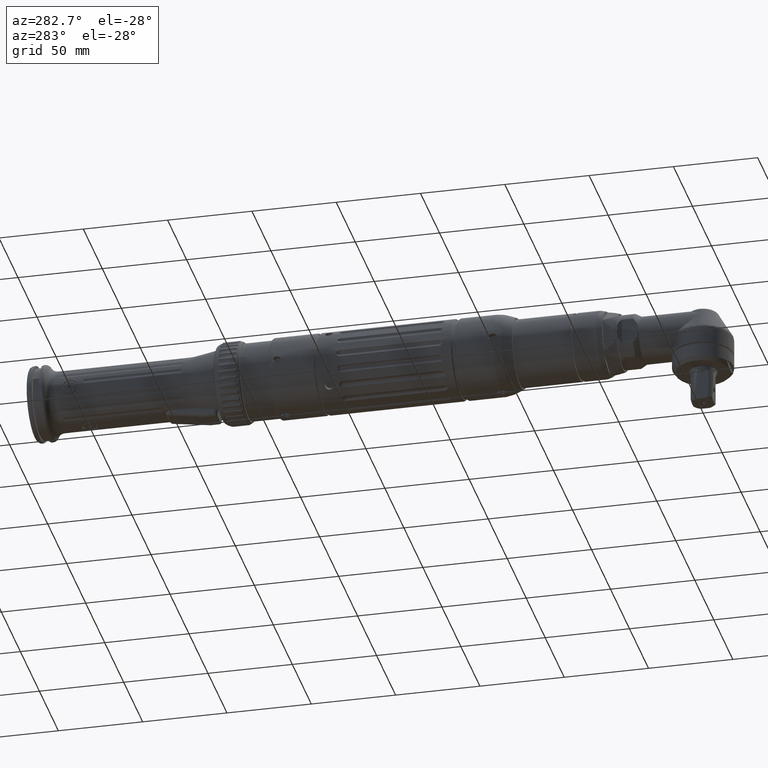
[diagram: clean part render]
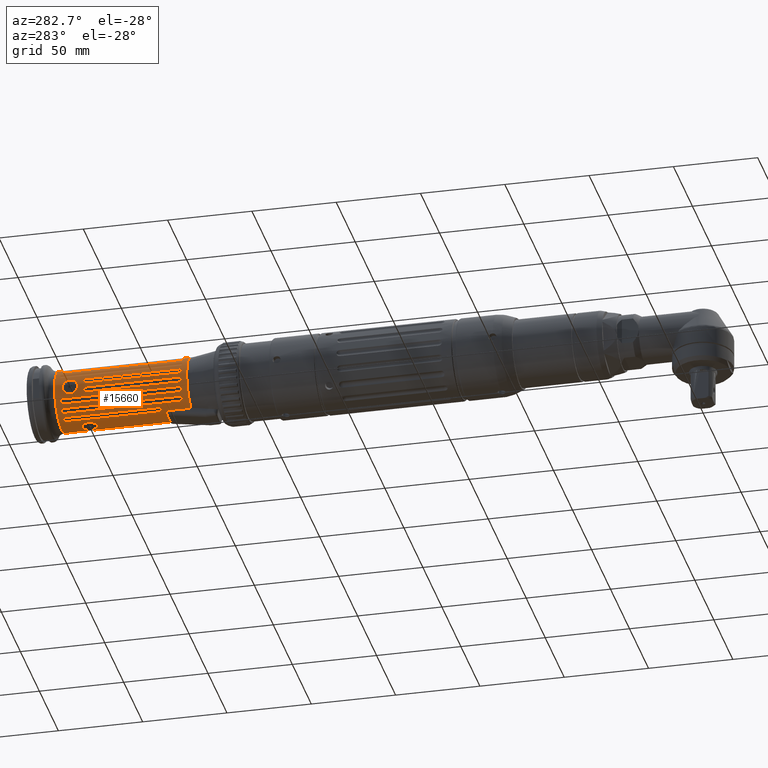
[diagram: same view with one face highlighted and labeled with its STEP entity id]
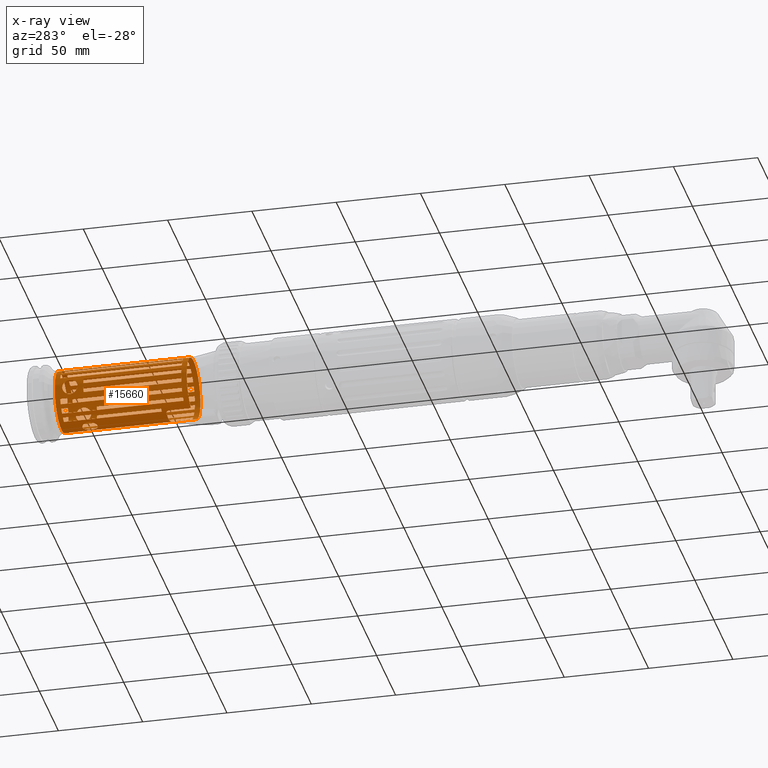
[diagram: x-ray of the same camera — body ghosted, the highlighted face saturated]
A machine part, auxiliary view. The second image highlights one B-rep face of the part: STEP entity #15660.
The next image is the same camera in x-ray: the body ghosted, the highlighted face saturated — about 0% of this face is hidden behind the body in this view.
In plain terms, the highlighted cylindrical surface (bore or boss wall) has radius 18 mm, axis along (-0, 1, -0).
Its self-contained STEP definition (entity closure, byte-faithful):
#428=B_SPLINE_CURVE_WITH_KNOTS('',3,(#26450,#26451,#26452,#26453,#26454,
#26455,#26456,#26457,#26458,#26459,#26460,#26461,#26462,#26463,#26464,#26465,
#26466,#26467),.UNSPECIFIED.,.F.,.F.,(4,2,2,2,2,2,2,2,4),(0.681159195238395,
0.851437088441764,1.02171498164513,1.19201668606096,1.36231839047679,1.53262009489262,
1.70292179930845,1.87319969251182,2.04347758571518),.UNSPECIFIED.);
#429=B_SPLINE_CURVE_WITH_KNOTS('',3,(#26468,#26469,#26470,#26471,#26472,
#26473,#26474,#26475,#26476,#26477,#26478,#26479,#26480,#26481,#26482,#26483,
#26484,#26485,#26486),.UNSPECIFIED.,.F.,.F.,(4,2,2,2,3,2,2,2,4),(2.04347758571518,
2.21375547891855,2.38403337212192,2.55433507653775,2.72463678095358,2.89493848536941,
3.06524018978524,3.23551808298861,3.40579597619198),.UNSPECIFIED.);
#430=B_SPLINE_CURVE_WITH_KNOTS('',3,(#26494,#26495,#26496,#26497,#26498,
#26499,#26500,#26501,#26502,#26503,#26504,#26505,#26506,#26507,#26508,#26509,
#26510,#26511),.UNSPECIFIED.,.F.,.F.,(4,2,2,2,2,2,2,2,4),(0.681159195238395,
0.851437088441765,1.02171498164513,1.19201668606096,1.36231839047679,1.53262009489262,
1.70292179930844,1.87319969251181,2.04347758571518),.UNSPECIFIED.);
#431=B_SPLINE_CURVE_WITH_KNOTS('',3,(#26512,#26513,#26514,#26515,#26516,
#26517,#26518,#26519,#26520,#26521,#26522,#26523,#26524,#26525,#26526,#26527,
#26528,#26529,#26530),.UNSPECIFIED.,.F.,.F.,(4,2,2,2,3,2,2,2,4),(2.04347758571518,
2.21375547891855,2.38403337212192,2.55433507653775,2.72463678095358,2.89493848536941,
3.06524018978523,3.2355180829886,3.40579597619197),.UNSPECIFIED.);
#432=B_SPLINE_CURVE_WITH_KNOTS('',3,(#26538,#26539,#26540,#26541,#26542,
#26543,#26544,#26545,#26546,#26547,#26548,#26549,#26550,#26551,#26552,#26553,
#26554,#26555),.UNSPECIFIED.,.F.,.F.,(4,2,2,2,2,2,2,2,4),(0.681159195238395,
0.851437088441764,1.02171498164513,1.19201668606096,1.36231839047679,1.53262009489262,
1.70292179930844,1.87319969251181,2.04347758571518),.UNSPECIFIED.);
#433=B_SPLINE_CURVE_WITH_KNOTS('',3,(#26556,#26557,#26558,#26559,#26560,
#26561,#26562,#26563,#26564,#26565,#26566,#26567,#26568,#26569,#26570,#26571,
#26572,#26573,#26574),.UNSPECIFIED.,.F.,.F.,(4,2,2,2,3,2,2,2,4),(2.04347758571518,
2.21375547891855,2.38403337212192,2.55433507653775,2.72463678095358,2.89493848536941,
3.06524018978523,3.2355180829886,3.40579597619197),.UNSPECIFIED.);
#434=B_SPLINE_CURVE_WITH_KNOTS('',3,(#26954,#26955,#26956,#26957,#26958,
#26959,#26960,#26961,#26962,#26963),.UNSPECIFIED.,.F.,.F.,(4,2,2,2,4),(0.615891232885407,
0.691283300350833,0.766675367816259,0.846407723507124,0.926140079197989),
 .UNSPECIFIED.);
#435=B_SPLINE_CURVE_WITH_KNOTS('',3,(#26970,#26971,#26972,#26973,#26974,
#26975,#26976,#26977,#26978,#26979),.UNSPECIFIED.,.F.,.F.,(4,2,2,2,4),(0.305642386572825,
0.385374742263691,0.465107097954556,0.540499165419982,0.615891232885407),
 .UNSPECIFIED.);
#1173=FACE_BOUND('',#4673,.T.);
#1174=FACE_BOUND('',#4674,.T.);
#1175=FACE_BOUND('',#4675,.T.);
#1176=FACE_BOUND('',#4676,.T.);
#1177=FACE_BOUND('',#4677,.T.);
#1178=FACE_BOUND('',#4678,.T.);
#1179=FACE_BOUND('',#4679,.T.);
#1180=FACE_BOUND('',#4680,.T.);
#1181=FACE_BOUND('',#4681,.T.);
#1182=FACE_BOUND('',#4682,.T.);
#1183=FACE_BOUND('',#4683,.T.);
#1184=FACE_BOUND('',#4684,.T.);
#1185=FACE_BOUND('',#4685,.T.);
#1186=FACE_BOUND('',#4686,.T.);
#1187=FACE_BOUND('',#4687,.T.);
#1188=FACE_BOUND('',#4688,.T.);
#1189=FACE_BOUND('',#4689,.T.);
#1190=FACE_BOUND('',#4690,.T.);
#1191=FACE_BOUND('',#4691,.T.);
#1192=FACE_BOUND('',#4692,.T.);
#1193=FACE_BOUND('',#4693,.T.);
#1194=FACE_BOUND('',#4694,.T.);
#1602=LINE('',#25584,#2469);
#1608=LINE('',#25615,#2475);
#1647=LINE('',#26159,#2514);
#1653=LINE('',#26174,#2520);
#1717=LINE('',#26618,#2584);
#1719=LINE('',#26623,#2586);
#1722=LINE('',#26634,#2589);
#1727=LINE('',#26643,#2594);
#1731=LINE('',#26656,#2598);
#1733=LINE('',#26661,#2600);
#1738=LINE('',#26675,#2605);
#1740=LINE('',#26680,#2607);
#1745=LINE('',#26694,#2612);
#1747=LINE('',#26699,#2614);
#1752=LINE('',#26713,#2619);
#1754=LINE('',#26718,#2621);
#1759=LINE('',#26732,#2626);
#1761=LINE('',#26737,#2628);
#1766=LINE('',#26751,#2633);
#1768=LINE('',#26756,#2635);
#1773=LINE('',#26770,#2640);
#1775=LINE('',#26775,#2642);
#1780=LINE('',#26789,#2647);
#1782=LINE('',#26794,#2649);
#1787=LINE('',#26808,#2654);
#1789=LINE('',#26813,#2656);
#1794=LINE('',#26827,#2661);
#1796=LINE('',#26832,#2663);
#1801=LINE('',#26846,#2668);
#1803=LINE('',#26851,#2670);
#1808=LINE('',#26865,#2675);
#1810=LINE('',#26870,#2677);
#1815=LINE('',#26884,#2682);
#1817=LINE('',#26889,#2684);
#1822=LINE('',#26903,#2689);
#1824=LINE('',#26908,#2691);
#1829=LINE('',#26922,#2696);
#1831=LINE('',#26927,#2698);
#1836=LINE('',#26941,#2703);
#1838=LINE('',#26946,#2705);
#2469=VECTOR('',#19917,10.);
#2475=VECTOR('',#19933,10.);
#2514=VECTOR('',#20150,10.);
#2520=VECTOR('',#20162,10.);
#2584=VECTOR('',#20370,10.);
#2586=VECTOR('',#20374,10.);
#2589=VECTOR('',#20387,10.);
#2594=VECTOR('',#20394,10.);
#2598=VECTOR('',#20408,10.);
#2600=VECTOR('',#20412,10.);
#2605=VECTOR('',#20427,10.);
#2607=VECTOR('',#20431,10.);
#2612=VECTOR('',#20446,10.);
#2614=VECTOR('',#20450,10.);
#2619=VECTOR('',#20465,10.);
#2621=VECTOR('',#20469,10.);
#2626=VECTOR('',#20484,10.);
#2628=VECTOR('',#20488,10.);
#2633=VECTOR('',#20503,10.);
#2635=VECTOR('',#20507,10.);
#2640=VECTOR('',#20522,10.);
#2642=VECTOR('',#20526,10.);
#2647=VECTOR('',#20541,10.);
#2649=VECTOR('',#20545,10.);
#2654=VECTOR('',#20560,10.);
#2656=VECTOR('',#20564,10.);
#2661=VECTOR('',#20579,10.);
#2663=VECTOR('',#20583,10.);
#2668=VECTOR('',#20598,10.);
#2670=VECTOR('',#20602,10.);
#2675=VECTOR('',#20617,10.);
#2677=VECTOR('',#20621,10.);
#2682=VECTOR('',#20636,10.);
#2684=VECTOR('',#20640,10.);
#2689=VECTOR('',#20655,10.);
#2691=VECTOR('',#20659,10.);
#2696=VECTOR('',#20674,10.);
#2698=VECTOR('',#20678,10.);
#2703=VECTOR('',#20693,10.);
#2705=VECTOR('',#20697,10.);
#3563=FACE_OUTER_BOUND('',#4672,.T.);
#4672=EDGE_LOOP('',(#11965,#11966,#11967,#11968,#11969,#11970,#11971,#11972));
#4673=EDGE_LOOP('',(#11973,#11974));
#4674=EDGE_LOOP('',(#11975,#11976));
#4675=EDGE_LOOP('',(#11977,#11978));
#4676=EDGE_LOOP('',(#11979,#11980,#11981,#11982));
#4677=EDGE_LOOP('',(#11983,#11984,#11985,#11986));
#4678=EDGE_LOOP('',(#11987,#11988,#11989,#11990));
#4679=EDGE_LOOP('',(#11991,#11992,#11993,#11994));
#4680=EDGE_LOOP('',(#11995,#11996,#11997,#11998));
#4681=EDGE_LOOP('',(#11999,#12000,#12001,#12002));
#4682=EDGE_LOOP('',(#12003,#12004,#12005,#12006));
#4683=EDGE_LOOP('',(#12007,#12008,#12009,#12010));
#4684=EDGE_LOOP('',(#12011,#12012,#12013,#12014));
#4685=EDGE_LOOP('',(#12015,#12016,#12017,#12018));
#4686=EDGE_LOOP('',(#12019,#12020,#12021,#12022));
#4687=EDGE_LOOP('',(#12023,#12024,#12025,#12026));
#4688=EDGE_LOOP('',(#12027,#12028,#12029,#12030));
#4689=EDGE_LOOP('',(#12031,#12032,#12033,#12034));
#4690=EDGE_LOOP('',(#12035,#12036,#12037,#12038));
#4691=EDGE_LOOP('',(#12039,#12040,#12041,#12042));
#4692=EDGE_LOOP('',(#12043,#12044,#12045,#12046));
#4693=EDGE_LOOP('',(#12047,#12048,#12049,#12050));
#4694=EDGE_LOOP('',(#12051));
#5671=CIRCLE('',#16992,18.);
#5685=CIRCLE('',#17038,18.);
#5686=CIRCLE('',#17040,18.);
#5687=CIRCLE('',#17044,18.);
#5688=CIRCLE('',#17046,18.);
#5689=CIRCLE('',#17050,18.);
#5690=CIRCLE('',#17052,18.);
#5691=CIRCLE('',#17056,18.);
#5692=CIRCLE('',#17058,18.);
#5693=CIRCLE('',#17062,18.);
#5694=CIRCLE('',#17064,18.);
#5695=CIRCLE('',#17068,18.);
#5696=CIRCLE('',#17070,18.);
#5697=CIRCLE('',#17074,18.);
#5698=CIRCLE('',#17076,18.);
#5699=CIRCLE('',#17080,18.);
#5700=CIRCLE('',#17082,18.);
#5701=CIRCLE('',#17086,18.);
#5702=CIRCLE('',#17088,18.);
#5703=CIRCLE('',#17092,18.);
#5704=CIRCLE('',#17094,18.);
#5705=CIRCLE('',#17098,18.);
#5706=CIRCLE('',#17100,18.);
#5707=CIRCLE('',#17104,18.);
#5708=CIRCLE('',#17106,18.);
#5709=CIRCLE('',#17110,18.);
#5710=CIRCLE('',#17112,18.);
#5711=CIRCLE('',#17116,18.);
#5712=CIRCLE('',#17118,18.);
#5713=CIRCLE('',#17122,18.);
#5714=CIRCLE('',#17124,18.);
#5715=CIRCLE('',#17128,18.);
#5716=CIRCLE('',#17130,18.);
#5717=CIRCLE('',#17134,18.);
#5718=CIRCLE('',#17136,18.);
#5719=CIRCLE('',#17140,18.);
#5720=CIRCLE('',#17142,18.);
#5721=CIRCLE('',#17145,18.);
#5722=CIRCLE('',#17149,18.);
#6740=VERTEX_POINT('',#25582);
#6741=VERTEX_POINT('',#25583);
#6751=VERTEX_POINT('',#25612);
#6752=VERTEX_POINT('',#25614);
#6814=VERTEX_POINT('',#26157);
#6820=VERTEX_POINT('',#26173);
#6870=VERTEX_POINT('',#26448);
#6871=VERTEX_POINT('',#26449);
#6873=VERTEX_POINT('',#26492);
#6874=VERTEX_POINT('',#26493);
#6876=VERTEX_POINT('',#26536);
#6877=VERTEX_POINT('',#26537);
#6883=VERTEX_POINT('',#26612);
#6885=VERTEX_POINT('',#26616);
#6886=VERTEX_POINT('',#26620);
#6887=VERTEX_POINT('',#26622);
#6889=VERTEX_POINT('',#26631);
#6890=VERTEX_POINT('',#26633);
#6892=VERTEX_POINT('',#26639);
#6893=VERTEX_POINT('',#26641);
#6895=VERTEX_POINT('',#26650);
#6897=VERTEX_POINT('',#26654);
#6898=VERTEX_POINT('',#26658);
#6899=VERTEX_POINT('',#26660);
#6901=VERTEX_POINT('',#26669);
#6903=VERTEX_POINT('',#26673);
#6904=VERTEX_POINT('',#26677);
#6905=VERTEX_POINT('',#26679);
#6907=VERTEX_POINT('',#26688);
#6909=VERTEX_POINT('',#26692);
#6910=VERTEX_POINT('',#26696);
#6911=VERTEX_POINT('',#26698);
#6913=VERTEX_POINT('',#26707);
#6915=VERTEX_POINT('',#26711);
#6916=VERTEX_POINT('',#26715);
#6917=VERTEX_POINT('',#26717);
#6919=VERTEX_POINT('',#26726);
#6921=VERTEX_POINT('',#26730);
#6922=VERTEX_POINT('',#26734);
#6923=VERTEX_POINT('',#26736);
#6925=VERTEX_POINT('',#26745);
#6927=VERTEX_POINT('',#26749);
#6928=VERTEX_POINT('',#26753);
#6929=VERTEX_POINT('',#26755);
#6931=VERTEX_POINT('',#26764);
#6933=VERTEX_POINT('',#26768);
#6934=VERTEX_POINT('',#26772);
#6935=VERTEX_POINT('',#26774);
#6937=VERTEX_POINT('',#26783);
#6939=VERTEX_POINT('',#26787);
#6940=VERTEX_POINT('',#26791);
#6941=VERTEX_POINT('',#26793);
#6943=VERTEX_POINT('',#26802);
#6945=VERTEX_POINT('',#26806);
#6946=VERTEX_POINT('',#26810);
#6947=VERTEX_POINT('',#26812);
#6949=VERTEX_POINT('',#26821);
#6951=VERTEX_POINT('',#26825);
#6952=VERTEX_POINT('',#26829);
#6953=VERTEX_POINT('',#26831);
#6955=VERTEX_POINT('',#26840);
#6957=VERTEX_POINT('',#26844);
#6958=VERTEX_POINT('',#26848);
#6959=VERTEX_POINT('',#26850);
#6961=VERTEX_POINT('',#26859);
#6963=VERTEX_POINT('',#26863);
#6964=VERTEX_POINT('',#26867);
#6965=VERTEX_POINT('',#26869);
#6967=VERTEX_POINT('',#26878);
#6969=VERTEX_POINT('',#26882);
#6970=VERTEX_POINT('',#26886);
#6971=VERTEX_POINT('',#26888);
#6973=VERTEX_POINT('',#26897);
#6975=VERTEX_POINT('',#26901);
#6976=VERTEX_POINT('',#26905);
#6977=VERTEX_POINT('',#26907);
#6979=VERTEX_POINT('',#26916);
#6981=VERTEX_POINT('',#26920);
#6982=VERTEX_POINT('',#26924);
#6983=VERTEX_POINT('',#26926);
#6985=VERTEX_POINT('',#26935);
#6987=VERTEX_POINT('',#26939);
#6988=VERTEX_POINT('',#26943);
#6989=VERTEX_POINT('',#26945);
#6990=VERTEX_POINT('',#26953);
#6991=VERTEX_POINT('',#26966);
#6994=VERTEX_POINT('',#26987);
#8395=EDGE_CURVE('',#6740,#6741,#1602,.T.);
#8407=EDGE_CURVE('',#6752,#6751,#1608,.T.);
#8515=EDGE_CURVE('',#6741,#6814,#1647,.T.);
#8522=EDGE_CURVE('',#6820,#6752,#1653,.T.);
#8579=EDGE_CURVE('',#6740,#6751,#5671,.T.);
#8599=EDGE_CURVE('',#6870,#6871,#428,.T.);
#8600=EDGE_CURVE('',#6871,#6870,#429,.T.);
#8602=EDGE_CURVE('',#6873,#6874,#430,.T.);
#8603=EDGE_CURVE('',#6874,#6873,#431,.T.);
#8605=EDGE_CURVE('',#6876,#6877,#432,.T.);
#8606=EDGE_CURVE('',#6877,#6876,#433,.T.);
#8628=EDGE_CURVE('',#6883,#6885,#1717,.T.);
#8630=EDGE_CURVE('',#6887,#6886,#1719,.T.);
#8632=EDGE_CURVE('',#6885,#6887,#5685,.T.);
#8633=EDGE_CURVE('',#6886,#6883,#5686,.T.);
#8635=EDGE_CURVE('',#6890,#6889,#1722,.T.);
#8640=EDGE_CURVE('',#6892,#6893,#1727,.T.);
#8641=EDGE_CURVE('',#6889,#6892,#5687,.T.);
#8642=EDGE_CURVE('',#6893,#6890,#5688,.T.);
#8646=EDGE_CURVE('',#6895,#6897,#1731,.T.);
#8648=EDGE_CURVE('',#6899,#6898,#1733,.T.);
#8650=EDGE_CURVE('',#6897,#6899,#5689,.T.);
#8651=EDGE_CURVE('',#6898,#6895,#5690,.T.);
#8655=EDGE_CURVE('',#6901,#6903,#1738,.T.);
#8657=EDGE_CURVE('',#6905,#6904,#1740,.T.);
#8659=EDGE_CURVE('',#6903,#6905,#5691,.T.);
#8660=EDGE_CURVE('',#6904,#6901,#5692,.T.);
#8664=EDGE_CURVE('',#6907,#6909,#1745,.T.);
#8666=EDGE_CURVE('',#6911,#6910,#1747,.T.);
#8668=EDGE_CURVE('',#6909,#6911,#5693,.T.);
#8669=EDGE_CURVE('',#6910,#6907,#5694,.T.);
#8673=EDGE_CURVE('',#6913,#6915,#1752,.T.);
#8675=EDGE_CURVE('',#6917,#6916,#1754,.T.);
#8677=EDGE_CURVE('',#6915,#6917,#5695,.T.);
#8678=EDGE_CURVE('',#6916,#6913,#5696,.T.);
#8682=EDGE_CURVE('',#6919,#6921,#1759,.T.);
#8684=EDGE_CURVE('',#6923,#6922,#1761,.T.);
#8686=EDGE_CURVE('',#6921,#6923,#5697,.T.);
#8687=EDGE_CURVE('',#6922,#6919,#5698,.T.);
#8691=EDGE_CURVE('',#6925,#6927,#1766,.T.);
#8693=EDGE_CURVE('',#6929,#6928,#1768,.T.);
#8695=EDGE_CURVE('',#6927,#6929,#5699,.T.);
#8696=EDGE_CURVE('',#6928,#6925,#5700,.T.);
#8700=EDGE_CURVE('',#6931,#6933,#1773,.T.);
#8702=EDGE_CURVE('',#6935,#6934,#1775,.T.);
#8704=EDGE_CURVE('',#6933,#6935,#5701,.T.);
#8705=EDGE_CURVE('',#6934,#6931,#5702,.T.);
#8709=EDGE_CURVE('',#6937,#6939,#1780,.T.);
#8711=EDGE_CURVE('',#6941,#6940,#1782,.T.);
#8713=EDGE_CURVE('',#6939,#6941,#5703,.T.);
#8714=EDGE_CURVE('',#6940,#6937,#5704,.T.);
#8718=EDGE_CURVE('',#6943,#6945,#1787,.T.);
#8720=EDGE_CURVE('',#6947,#6946,#1789,.T.);
#8722=EDGE_CURVE('',#6945,#6947,#5705,.T.);
#8723=EDGE_CURVE('',#6946,#6943,#5706,.T.);
#8727=EDGE_CURVE('',#6949,#6951,#1794,.T.);
#8729=EDGE_CURVE('',#6953,#6952,#1796,.T.);
#8731=EDGE_CURVE('',#6951,#6953,#5707,.T.);
#8732=EDGE_CURVE('',#6952,#6949,#5708,.T.);
#8736=EDGE_CURVE('',#6955,#6957,#1801,.T.);
#8738=EDGE_CURVE('',#6959,#6958,#1803,.T.);
#8740=EDGE_CURVE('',#6957,#6959,#5709,.T.);
#8741=EDGE_CURVE('',#6958,#6955,#5710,.T.);
#8745=EDGE_CURVE('',#6961,#6963,#1808,.T.);
#8747=EDGE_CURVE('',#6965,#6964,#1810,.T.);
#8749=EDGE_CURVE('',#6963,#6965,#5711,.T.);
#8750=EDGE_CURVE('',#6964,#6961,#5712,.T.);
#8754=EDGE_CURVE('',#6967,#6969,#1815,.T.);
#8756=EDGE_CURVE('',#6971,#6970,#1817,.T.);
#8758=EDGE_CURVE('',#6969,#6971,#5713,.T.);
#8759=EDGE_CURVE('',#6970,#6967,#5714,.T.);
#8763=EDGE_CURVE('',#6973,#6975,#1822,.T.);
#8765=EDGE_CURVE('',#6977,#6976,#1824,.T.);
#8767=EDGE_CURVE('',#6975,#6977,#5715,.T.);
#8768=EDGE_CURVE('',#6976,#6973,#5716,.T.);
#8772=EDGE_CURVE('',#6979,#6981,#1829,.T.);
#8774=EDGE_CURVE('',#6983,#6982,#1831,.T.);
#8776=EDGE_CURVE('',#6981,#6983,#5717,.T.);
#8777=EDGE_CURVE('',#6982,#6979,#5718,.T.);
#8781=EDGE_CURVE('',#6985,#6987,#1836,.T.);
#8783=EDGE_CURVE('',#6989,#6988,#1838,.T.);
#8785=EDGE_CURVE('',#6987,#6989,#5719,.T.);
#8786=EDGE_CURVE('',#6988,#6985,#5720,.T.);
#8787=EDGE_CURVE('',#6820,#6990,#434,.T.);
#8789=EDGE_CURVE('',#6991,#6990,#5721,.T.);
#8791=EDGE_CURVE('',#6991,#6814,#435,.T.);
#8795=EDGE_CURVE('',#6994,#6994,#5722,.T.);
#11965=ORIENTED_EDGE('',*,*,#8579,.F.);
#11966=ORIENTED_EDGE('',*,*,#8395,.T.);
#11967=ORIENTED_EDGE('',*,*,#8515,.T.);
#11968=ORIENTED_EDGE('',*,*,#8791,.F.);
#11969=ORIENTED_EDGE('',*,*,#8789,.T.);
#11970=ORIENTED_EDGE('',*,*,#8787,.F.);
#11971=ORIENTED_EDGE('',*,*,#8522,.T.);
#11972=ORIENTED_EDGE('',*,*,#8407,.T.);
#11973=ORIENTED_EDGE('',*,*,#8599,.T.);
#11974=ORIENTED_EDGE('',*,*,#8600,.T.);
#11975=ORIENTED_EDGE('',*,*,#8602,.T.);
#11976=ORIENTED_EDGE('',*,*,#8603,.T.);
#11977=ORIENTED_EDGE('',*,*,#8605,.T.);
#11978=ORIENTED_EDGE('',*,*,#8606,.T.);
#11979=ORIENTED_EDGE('',*,*,#8630,.T.);
#11980=ORIENTED_EDGE('',*,*,#8633,.T.);
#11981=ORIENTED_EDGE('',*,*,#8628,.T.);
#11982=ORIENTED_EDGE('',*,*,#8632,.T.);
#11983=ORIENTED_EDGE('',*,*,#8640,.T.);
#11984=ORIENTED_EDGE('',*,*,#8642,.T.);
#11985=ORIENTED_EDGE('',*,*,#8635,.T.);
#11986=ORIENTED_EDGE('',*,*,#8641,.T.);
#11987=ORIENTED_EDGE('',*,*,#8648,.T.);
#11988=ORIENTED_EDGE('',*,*,#8651,.T.);
#11989=ORIENTED_EDGE('',*,*,#8646,.T.);
#11990=ORIENTED_EDGE('',*,*,#8650,.T.);
#11991=ORIENTED_EDGE('',*,*,#8657,.T.);
#11992=ORIENTED_EDGE('',*,*,#8660,.T.);
#11993=ORIENTED_EDGE('',*,*,#8655,.T.);
#11994=ORIENTED_EDGE('',*,*,#8659,.T.);
#11995=ORIENTED_EDGE('',*,*,#8666,.T.);
#11996=ORIENTED_EDGE('',*,*,#8669,.T.);
#11997=ORIENTED_EDGE('',*,*,#8664,.T.);
#11998=ORIENTED_EDGE('',*,*,#8668,.T.);
#11999=ORIENTED_EDGE('',*,*,#8675,.T.);
#12000=ORIENTED_EDGE('',*,*,#8678,.T.);
#12001=ORIENTED_EDGE('',*,*,#8673,.T.);
#12002=ORIENTED_EDGE('',*,*,#8677,.T.);
#12003=ORIENTED_EDGE('',*,*,#8684,.T.);
#12004=ORIENTED_EDGE('',*,*,#8687,.T.);
#12005=ORIENTED_EDGE('',*,*,#8682,.T.);
#12006=ORIENTED_EDGE('',*,*,#8686,.T.);
#12007=ORIENTED_EDGE('',*,*,#8693,.T.);
#12008=ORIENTED_EDGE('',*,*,#8696,.T.);
#12009=ORIENTED_EDGE('',*,*,#8691,.T.);
#12010=ORIENTED_EDGE('',*,*,#8695,.T.);
#12011=ORIENTED_EDGE('',*,*,#8702,.T.);
#12012=ORIENTED_EDGE('',*,*,#8705,.T.);
#12013=ORIENTED_EDGE('',*,*,#8700,.T.);
#12014=ORIENTED_EDGE('',*,*,#8704,.T.);
#12015=ORIENTED_EDGE('',*,*,#8711,.T.);
#12016=ORIENTED_EDGE('',*,*,#8714,.T.);
#12017=ORIENTED_EDGE('',*,*,#8709,.T.);
#12018=ORIENTED_EDGE('',*,*,#8713,.T.);
#12019=ORIENTED_EDGE('',*,*,#8720,.T.);
#12020=ORIENTED_EDGE('',*,*,#8723,.T.);
#12021=ORIENTED_EDGE('',*,*,#8718,.T.);
#12022=ORIENTED_EDGE('',*,*,#8722,.T.);
#12023=ORIENTED_EDGE('',*,*,#8729,.T.);
#12024=ORIENTED_EDGE('',*,*,#8732,.T.);
#12025=ORIENTED_EDGE('',*,*,#8727,.T.);
#12026=ORIENTED_EDGE('',*,*,#8731,.T.);
#12027=ORIENTED_EDGE('',*,*,#8738,.T.);
#12028=ORIENTED_EDGE('',*,*,#8741,.T.);
#12029=ORIENTED_EDGE('',*,*,#8736,.T.);
#12030=ORIENTED_EDGE('',*,*,#8740,.T.);
#12031=ORIENTED_EDGE('',*,*,#8747,.T.);
#12032=ORIENTED_EDGE('',*,*,#8750,.T.);
#12033=ORIENTED_EDGE('',*,*,#8745,.T.);
#12034=ORIENTED_EDGE('',*,*,#8749,.T.);
#12035=ORIENTED_EDGE('',*,*,#8756,.T.);
#12036=ORIENTED_EDGE('',*,*,#8759,.T.);
#12037=ORIENTED_EDGE('',*,*,#8754,.T.);
#12038=ORIENTED_EDGE('',*,*,#8758,.T.);
#12039=ORIENTED_EDGE('',*,*,#8765,.T.);
#12040=ORIENTED_EDGE('',*,*,#8768,.T.);
#12041=ORIENTED_EDGE('',*,*,#8763,.T.);
#12042=ORIENTED_EDGE('',*,*,#8767,.T.);
#12043=ORIENTED_EDGE('',*,*,#8774,.T.);
#12044=ORIENTED_EDGE('',*,*,#8777,.T.);
#12045=ORIENTED_EDGE('',*,*,#8772,.T.);
#12046=ORIENTED_EDGE('',*,*,#8776,.T.);
#12047=ORIENTED_EDGE('',*,*,#8783,.T.);
#12048=ORIENTED_EDGE('',*,*,#8786,.T.);
#12049=ORIENTED_EDGE('',*,*,#8781,.T.);
#12050=ORIENTED_EDGE('',*,*,#8785,.T.);
#12051=ORIENTED_EDGE('',*,*,#8795,.F.);
#14087=CYLINDRICAL_SURFACE('',#17148,18.);
#15660=ADVANCED_FACE('',(#3563,#1173,#1174,#1175,#1176,#1177,#1178,#1179,
#1180,#1181,#1182,#1183,#1184,#1185,#1186,#1187,#1188,#1189,#1190,#1191,
#1192,#1193,#1194),#14087,.T.);
#16992=AXIS2_PLACEMENT_3D('',#26404,#20253,#20254);
#17038=AXIS2_PLACEMENT_3D('',#26626,#20378,#20379);
#17040=AXIS2_PLACEMENT_3D('',#26628,#20382,#20383);
#17044=AXIS2_PLACEMENT_3D('',#26645,#20397,#20398);
#17046=AXIS2_PLACEMENT_3D('',#26647,#20401,#20402);
#17050=AXIS2_PLACEMENT_3D('',#26664,#20416,#20417);
#17052=AXIS2_PLACEMENT_3D('',#26666,#20420,#20421);
#17056=AXIS2_PLACEMENT_3D('',#26683,#20435,#20436);
#17058=AXIS2_PLACEMENT_3D('',#26685,#20439,#20440);
#17062=AXIS2_PLACEMENT_3D('',#26702,#20454,#20455);
#17064=AXIS2_PLACEMENT_3D('',#26704,#20458,#20459);
#17068=AXIS2_PLACEMENT_3D('',#26721,#20473,#20474);
#17070=AXIS2_PLACEMENT_3D('',#26723,#20477,#20478);
#17074=AXIS2_PLACEMENT_3D('',#26740,#20492,#20493);
#17076=AXIS2_PLACEMENT_3D('',#26742,#20496,#20497);
#17080=AXIS2_PLACEMENT_3D('',#26759,#20511,#20512);
#17082=AXIS2_PLACEMENT_3D('',#26761,#20515,#20516);
#17086=AXIS2_PLACEMENT_3D('',#26778,#20530,#20531);
#17088=AXIS2_PLACEMENT_3D('',#26780,#20534,#20535);
#17092=AXIS2_PLACEMENT_3D('',#26797,#20549,#20550);
#17094=AXIS2_PLACEMENT_3D('',#26799,#20553,#20554);
#17098=AXIS2_PLACEMENT_3D('',#26816,#20568,#20569);
#17100=AXIS2_PLACEMENT_3D('',#26818,#20572,#20573);
#17104=AXIS2_PLACEMENT_3D('',#26835,#20587,#20588);
#17106=AXIS2_PLACEMENT_3D('',#26837,#20591,#20592);
#17110=AXIS2_PLACEMENT_3D('',#26854,#20606,#20607);
#17112=AXIS2_PLACEMENT_3D('',#26856,#20610,#20611);
#17116=AXIS2_PLACEMENT_3D('',#26873,#20625,#20626);
#17118=AXIS2_PLACEMENT_3D('',#26875,#20629,#20630);
#17122=AXIS2_PLACEMENT_3D('',#26892,#20644,#20645);
#17124=AXIS2_PLACEMENT_3D('',#26894,#20648,#20649);
#17128=AXIS2_PLACEMENT_3D('',#26911,#20663,#20664);
#17130=AXIS2_PLACEMENT_3D('',#26913,#20667,#20668);
#17134=AXIS2_PLACEMENT_3D('',#26930,#20682,#20683);
#17136=AXIS2_PLACEMENT_3D('',#26932,#20686,#20687);
#17140=AXIS2_PLACEMENT_3D('',#26949,#20701,#20702);
#17142=AXIS2_PLACEMENT_3D('',#26951,#20705,#20706);
#17145=AXIS2_PLACEMENT_3D('',#26967,#20712,#20713);
#17148=AXIS2_PLACEMENT_3D('',#26986,#20722,#20723);
#17149=AXIS2_PLACEMENT_3D('',#26988,#20724,#20725);
#19917=DIRECTION('',(-3.57077291260411E-15,1.,-1.39896932915523E-15));
#19933=DIRECTION('',(3.57077291260411E-15,-1.,1.39896932915523E-15));
#20150=DIRECTION('',(-3.57077291260411E-15,1.,-1.39896932915523E-15));
#20162=DIRECTION('',(3.57077291260411E-15,-1.,1.39896932915523E-15));
#20253=DIRECTION('center_axis',(3.57077291260411E-15,-1.,1.39896932915523E-15));
#20254=DIRECTION('ref_axis',(4.59536232514686E-17,1.39896932915523E-15,
1.));
#20370=DIRECTION('',(-3.57077291260411E-15,1.,-1.39896932915523E-15));
#20374=DIRECTION('',(3.57077291260411E-15,-1.,1.39896932915523E-15));
#20378=DIRECTION('center_axis',(-3.57077291260411E-15,1.,-1.39896932915523E-15));
#20379=DIRECTION('ref_axis',(3.52115323038307E-16,1.39896932915523E-15,
1.));
#20382=DIRECTION('center_axis',(3.57077291260411E-15,-1.,1.39896932915523E-15));
#20383=DIRECTION('ref_axis',(3.52115323038307E-16,1.39896932915523E-15,
1.));
#20387=DIRECTION('',(3.57077291260411E-15,-1.,1.39896932915523E-15));
#20394=DIRECTION('',(-3.57077291260411E-15,1.,-1.39896932915523E-15));
#20397=DIRECTION('center_axis',(3.57077291260411E-15,-1.,1.39896932915523E-15));
#20398=DIRECTION('ref_axis',(3.52115323038307E-16,1.39896932915523E-15,
1.));
#20401=DIRECTION('center_axis',(-3.57077291260411E-15,1.,-1.39896932915523E-15));
#20402=DIRECTION('ref_axis',(3.52115323038307E-16,1.39896932915523E-15,
1.));
#20408=DIRECTION('',(-3.57077291260411E-15,1.,-1.39896932915523E-15));
#20412=DIRECTION('',(3.57077291260411E-15,-1.,1.39896932915523E-15));
#20416=DIRECTION('center_axis',(-3.57077291260411E-15,1.,-1.39896932915523E-15));
#20417=DIRECTION('ref_axis',(3.52115323038307E-16,1.39896932915523E-15,
1.));
#20420=DIRECTION('center_axis',(3.57077291260411E-15,-1.,1.39896932915523E-15));
#20421=DIRECTION('ref_axis',(3.52115323038307E-16,1.39896932915523E-15,
1.));
#20427=DIRECTION('',(-3.57077291260411E-15,1.,-1.39896932915523E-15));
#20431=DIRECTION('',(3.57077291260411E-15,-1.,1.39896932915523E-15));
#20435=DIRECTION('center_axis',(-3.57077291260411E-15,1.,-1.39896932915523E-15));
#20436=DIRECTION('ref_axis',(3.52115323038307E-16,1.39896932915523E-15,
1.));
#20439=DIRECTION('center_axis',(3.57077291260411E-15,-1.,1.39896932915523E-15));
#20440=DIRECTION('ref_axis',(3.52115323038307E-16,1.39896932915523E-15,
1.));
#20446=DIRECTION('',(-3.57077291260411E-15,1.,-1.39896932915523E-15));
#20450=DIRECTION('',(3.57077291260411E-15,-1.,1.39896932915523E-15));
#20454=DIRECTION('center_axis',(-3.57077291260411E-15,1.,-1.39896932915523E-15));
#20455=DIRECTION('ref_axis',(3.52115323038307E-16,1.39896932915523E-15,
1.));
#20458=DIRECTION('center_axis',(3.57077291260411E-15,-1.,1.39896932915523E-15));
#20459=DIRECTION('ref_axis',(3.52115323038307E-16,1.39896932915523E-15,
1.));
#20465=DIRECTION('',(-3.57077291260411E-15,1.,-1.39896932915523E-15));
#20469=DIRECTION('',(3.57077291260411E-15,-1.,1.39896932915523E-15));
#20473=DIRECTION('center_axis',(-3.57077291260411E-15,1.,-1.39896932915523E-15));
#20474=DIRECTION('ref_axis',(3.52115323038307E-16,1.39896932915523E-15,
1.));
#20477=DIRECTION('center_axis',(3.57077291260411E-15,-1.,1.39896932915523E-15));
#20478=DIRECTION('ref_axis',(3.52115323038307E-16,1.39896932915523E-15,
1.));
#20484=DIRECTION('',(-3.57077291260411E-15,1.,-1.39896932915523E-15));
#20488=DIRECTION('',(3.57077291260411E-15,-1.,1.39896932915523E-15));
#20492=DIRECTION('center_axis',(-3.57077291260411E-15,1.,-1.39896932915523E-15));
#20493=DIRECTION('ref_axis',(3.52115323038307E-16,1.39896932915523E-15,
1.));
#20496=DIRECTION('center_axis',(3.57077291260411E-15,-1.,1.39896932915523E-15));
#20497=DIRECTION('ref_axis',(3.52115323038307E-16,1.39896932915523E-15,
1.));
#20503=DIRECTION('',(-3.57077291260411E-15,1.,-1.39896932915523E-15));
#20507=DIRECTION('',(3.57077291260411E-15,-1.,1.39896932915523E-15));
#20511=DIRECTION('center_axis',(-3.57077291260411E-15,1.,-1.39896932915523E-15));
#20512=DIRECTION('ref_axis',(3.52115323038307E-16,1.39896932915523E-15,
1.));
#20515=DIRECTION('center_axis',(3.57077291260411E-15,-1.,1.39896932915523E-15));
#20516=DIRECTION('ref_axis',(3.52115323038307E-16,1.39896932915523E-15,
1.));
#20522=DIRECTION('',(-3.57077291260411E-15,1.,-1.39896932915523E-15));
#20526=DIRECTION('',(3.57077291260411E-15,-1.,1.39896932915523E-15));
#20530=DIRECTION('center_axis',(-3.57077291260411E-15,1.,-1.39896932915523E-15));
#20531=DIRECTION('ref_axis',(3.52115323038307E-16,1.39896932915523E-15,
1.));
#20534=DIRECTION('center_axis',(3.57077291260411E-15,-1.,1.39896932915523E-15));
#20535=DIRECTION('ref_axis',(3.52115323038307E-16,1.39896932915523E-15,
1.));
#20541=DIRECTION('',(-3.57077291260411E-15,1.,-1.39896932915523E-15));
#20545=DIRECTION('',(3.57077291260411E-15,-1.,1.39896932915523E-15));
#20549=DIRECTION('center_axis',(-3.57077291260411E-15,1.,-1.39896932915523E-15));
#20550=DIRECTION('ref_axis',(3.52115323038307E-16,1.39896932915523E-15,
1.));
#20553=DIRECTION('center_axis',(3.57077291260411E-15,-1.,1.39896932915523E-15));
#20554=DIRECTION('ref_axis',(3.52115323038307E-16,1.39896932915523E-15,
1.));
#20560=DIRECTION('',(-3.57077291260411E-15,1.,-1.39896932915523E-15));
#20564=DIRECTION('',(3.57077291260411E-15,-1.,1.39896932915523E-15));
#20568=DIRECTION('center_axis',(-3.57077291260411E-15,1.,-1.39896932915523E-15));
#20569=DIRECTION('ref_axis',(3.52115323038307E-16,1.39896932915523E-15,
1.));
#20572=DIRECTION('center_axis',(3.57077291260411E-15,-1.,1.39896932915523E-15));
#20573=DIRECTION('ref_axis',(3.52115323038307E-16,1.39896932915523E-15,
1.));
#20579=DIRECTION('',(-3.57077291260411E-15,1.,-1.39896932915523E-15));
#20583=DIRECTION('',(3.57077291260411E-15,-1.,1.39896932915523E-15));
#20587=DIRECTION('center_axis',(-3.57077291260411E-15,1.,-1.39896932915523E-15));
#20588=DIRECTION('ref_axis',(3.52115323038307E-16,1.39896932915523E-15,
1.));
#20591=DIRECTION('center_axis',(3.57077291260411E-15,-1.,1.39896932915523E-15));
#20592=DIRECTION('ref_axis',(3.52115323038307E-16,1.39896932915523E-15,
1.));
#20598=DIRECTION('',(-3.57077291260411E-15,1.,-1.39896932915523E-15));
#20602=DIRECTION('',(3.57077291260411E-15,-1.,1.39896932915523E-15));
#20606=DIRECTION('center_axis',(-3.57077291260411E-15,1.,-1.39896932915523E-15));
#20607=DIRECTION('ref_axis',(3.52115323038307E-16,1.39896932915523E-15,
1.));
#20610=DIRECTION('center_axis',(3.57077291260411E-15,-1.,1.39896932915523E-15));
#20611=DIRECTION('ref_axis',(3.52115323038307E-16,1.39896932915523E-15,
1.));
#20617=DIRECTION('',(-3.57077291260411E-15,1.,-1.39896932915523E-15));
#20621=DIRECTION('',(3.57077291260411E-15,-1.,1.39896932915523E-15));
#20625=DIRECTION('center_axis',(-3.57077291260411E-15,1.,-1.39896932915523E-15));
#20626=DIRECTION('ref_axis',(3.52115323038307E-16,1.39896932915523E-15,
1.));
#20629=DIRECTION('center_axis',(3.57077291260411E-15,-1.,1.39896932915523E-15));
#20630=DIRECTION('ref_axis',(3.52115323038307E-16,1.39896932915523E-15,
1.));
#20636=DIRECTION('',(-3.57077291260411E-15,1.,-1.39896932915523E-15));
#20640=DIRECTION('',(3.57077291260411E-15,-1.,1.39896932915523E-15));
#20644=DIRECTION('center_axis',(-3.57077291260411E-15,1.,-1.39896932915523E-15));
#20645=DIRECTION('ref_axis',(3.52115323038307E-16,1.39896932915523E-15,
1.));
#20648=DIRECTION('center_axis',(3.57077291260411E-15,-1.,1.39896932915523E-15));
#20649=DIRECTION('ref_axis',(3.52115323038307E-16,1.39896932915523E-15,
1.));
#20655=DIRECTION('',(-3.57077291260411E-15,1.,-1.39896932915523E-15));
#20659=DIRECTION('',(3.57077291260411E-15,-1.,1.39896932915523E-15));
#20663=DIRECTION('center_axis',(-3.57077291260411E-15,1.,-1.39896932915523E-15));
#20664=DIRECTION('ref_axis',(3.52115323038307E-16,1.39896932915523E-15,
1.));
#20667=DIRECTION('center_axis',(3.57077291260411E-15,-1.,1.39896932915523E-15));
#20668=DIRECTION('ref_axis',(3.52115323038307E-16,1.39896932915523E-15,
1.));
#20674=DIRECTION('',(-3.57077291260411E-15,1.,-1.39896932915523E-15));
#20678=DIRECTION('',(3.57077291260411E-15,-1.,1.39896932915523E-15));
#20682=DIRECTION('center_axis',(-3.57077291260411E-15,1.,-1.39896932915523E-15));
#20683=DIRECTION('ref_axis',(3.52115323038307E-16,1.39896932915523E-15,
1.));
#20686=DIRECTION('center_axis',(3.57077291260411E-15,-1.,1.39896932915523E-15));
#20687=DIRECTION('ref_axis',(3.52115323038307E-16,1.39896932915523E-15,
1.));
#20693=DIRECTION('',(-3.57077291260411E-15,1.,-1.39896932915523E-15));
#20697=DIRECTION('',(3.57077291260411E-15,-1.,1.39896932915523E-15));
#20701=DIRECTION('center_axis',(-3.57077291260411E-15,1.,-1.39896932915523E-15));
#20702=DIRECTION('ref_axis',(3.52115323038307E-16,1.39896932915523E-15,
1.));
#20705=DIRECTION('center_axis',(3.57077291260411E-15,-1.,1.39896932915523E-15));
#20706=DIRECTION('ref_axis',(3.52115323038307E-16,1.39896932915523E-15,
1.));
#20712=DIRECTION('center_axis',(-3.57077291260411E-15,1.,-1.39896932915523E-15));
#20713=DIRECTION('ref_axis',(3.52115323038307E-16,1.39896932915523E-15,
1.));
#20722=DIRECTION('center_axis',(-3.57077291260411E-15,1.,-1.39896932915523E-15));
#20723=DIRECTION('ref_axis',(3.52115323038307E-16,1.39896932915523E-15,
1.));
#20724=DIRECTION('center_axis',(-3.57077291260411E-15,1.,-1.39896932915523E-15));
#20725=DIRECTION('ref_axis',(-1.,-3.57077291260411E-15,3.52115323038312E-16));
#25582=CARTESIAN_POINT('',(6.99999999999937,302.204250605964,-16.5831239517767));
#25583=CARTESIAN_POINT('',(6.99999999999932,314.349,-16.5831239517767));
#25584=CARTESIAN_POINT('',(6.99999999999923,340.549,-16.5831239517768));
#25612=CARTESIAN_POINT('',(-7.00000000000064,302.204250605964,-16.5831239517767));
#25614=CARTESIAN_POINT('',(-7.00000000000068,314.349,-16.5831239517767));
#25615=CARTESIAN_POINT('',(-7.00000000000078,340.549,-16.5831239517768));
#26157=CARTESIAN_POINT('',(6.99999999999932,315.149,-16.5831239517767));
#26159=CARTESIAN_POINT('',(6.99999999999923,340.549,-16.5831239517768));
#26173=CARTESIAN_POINT('',(-7.00000000000068,315.149,-16.5831239517767));
#26174=CARTESIAN_POINT('',(-7.00000000000078,340.549,-16.5831239517768));
#26404=CARTESIAN_POINT('Origin',(-6.29575280341882E-13,302.204250605964,
2.9033190663653E-13));
#26448=CARTESIAN_POINT('',(-8.7103000373E-13,368.049,-17.9999999999998));
#26449=CARTESIAN_POINT('',(-8.38893047516563E-13,359.049,-17.9999999999998));
#26450=CARTESIAN_POINT('Ctrl Pts',(-8.64447402548763E-13,368.049,-17.9999999999998));
#26451=CARTESIAN_POINT('Ctrl Pts',(-0.56759297734543,368.049,-17.9999999999998));
#26452=CARTESIAN_POINT('Ctrl Pts',(-1.1713979511751,367.935075169635,-17.9704647044078));
#26453=CARTESIAN_POINT('Ctrl Pts',(-2.27942057071007,367.475075666882,-17.863762670115));
#26454=CARTESIAN_POINT('Ctrl Pts',(-2.78382972182275,367.129131308857,-17.7880277100483));
#26455=CARTESIAN_POINT('Ctrl Pts',(-3.58018698521705,366.332774045462,-17.6449977232352));
#26456=CARTESIAN_POINT('Ctrl Pts',(-3.92608793302347,365.828388082637,-17.5682015000517));
#26457=CARTESIAN_POINT('Ctrl Pts',(-4.38605574340565,364.720447686047,-17.4590488559556));
#26458=CARTESIAN_POINT('Ctrl Pts',(-4.50000000000086,364.116672348052,-17.4284250579332));
#26459=CARTESIAN_POINT('Ctrl Pts',(-4.50000000000085,362.981327651947,-17.4284250579332));
#26460=CARTESIAN_POINT('Ctrl Pts',(-4.38605574340564,362.377552313952,-17.4590488559556));
#26461=CARTESIAN_POINT('Ctrl Pts',(-3.92608793302345,361.269611917363,-17.5682015000517));
#26462=CARTESIAN_POINT('Ctrl Pts',(-3.58018698521703,360.765225954537,-17.6449977232351));
#26463=CARTESIAN_POINT('Ctrl Pts',(-2.78382972182272,359.968868691143,-17.7880277100483));
#26464=CARTESIAN_POINT('Ctrl Pts',(-2.27942057071004,359.622924333117,-17.863762670115));
#26465=CARTESIAN_POINT('Ctrl Pts',(-1.17139795117507,359.162924830364,-17.9704647044078));
#26466=CARTESIAN_POINT('Ctrl Pts',(-0.567592977345408,359.049,-17.9999999999998));
#26467=CARTESIAN_POINT('Ctrl Pts',(-8.42659275690494E-13,359.049,-17.9999999999998));
#26468=CARTESIAN_POINT('Ctrl Pts',(-8.35304048152352E-13,359.049,-17.9999999999998));
#26469=CARTESIAN_POINT('Ctrl Pts',(0.567592977343731,359.049,-17.9999999999998));
#26470=CARTESIAN_POINT('Ctrl Pts',(1.17139795117339,359.162924830364,-17.9704647044078));
#26471=CARTESIAN_POINT('Ctrl Pts',(2.27942057070836,359.622924333117,-17.8637626701149));
#26472=CARTESIAN_POINT('Ctrl Pts',(2.78382972182104,359.968868691143,-17.7880277100483));
#26473=CARTESIAN_POINT('Ctrl Pts',(3.58018698521534,360.765225954537,-17.6449977232352));
#26474=CARTESIAN_POINT('Ctrl Pts',(3.92608793302177,361.269611917363,-17.5682015000517));
#26475=CARTESIAN_POINT('Ctrl Pts',(4.38605574340395,362.377552313953,-17.4590488559556));
#26476=CARTESIAN_POINT('Ctrl Pts',(4.49999999999915,362.981327651947,-17.4284250579332));
#26477=CARTESIAN_POINT('Ctrl Pts',(4.49999999999915,363.549,-17.4284250579332));
#26478=CARTESIAN_POINT('Ctrl Pts',(4.49999999999914,364.116672348052,-17.4284250579332));
#26479=CARTESIAN_POINT('Ctrl Pts',(4.38605574340393,364.720447686047,-17.4590488559556));
#26480=CARTESIAN_POINT('Ctrl Pts',(3.92608793302175,365.828388082637,-17.5682015000517));
#26481=CARTESIAN_POINT('Ctrl Pts',(3.58018698521532,366.332774045462,-17.6449977232352));
#26482=CARTESIAN_POINT('Ctrl Pts',(2.78382972182101,367.129131308857,-17.7880277100483));
#26483=CARTESIAN_POINT('Ctrl Pts',(2.27942057070833,367.475075666882,-17.863762670115));
#26484=CARTESIAN_POINT('Ctrl Pts',(1.17139795117336,367.935075169635,-17.9704647044078));
#26485=CARTESIAN_POINT('Ctrl Pts',(0.567592977343693,368.049,-17.9999999999998));
#26486=CARTESIAN_POINT('Ctrl Pts',(-8.72357741599217E-13,368.049,-17.9999999999998));
#26492=CARTESIAN_POINT('',(-18.0000000000009,376.049,1.93363442929809E-13));
#26493=CARTESIAN_POINT('',(-18.0000000000009,367.049,2.05954166892206E-13));
#26494=CARTESIAN_POINT('Ctrl Pts',(-18.0000000000009,376.049,1.94219640370363E-13));
#26495=CARTESIAN_POINT('Ctrl Pts',(-18.0000000000009,376.049,0.56759297734476));
#26496=CARTESIAN_POINT('Ctrl Pts',(-17.9704647044089,375.935075169635,1.17139795117443));
#26497=CARTESIAN_POINT('Ctrl Pts',(-17.8637626701161,375.475075666882,2.2794205707094));
#26498=CARTESIAN_POINT('Ctrl Pts',(-17.7880277100494,375.129131308857,2.78382972182208));
#26499=CARTESIAN_POINT('Ctrl Pts',(-17.6449977232362,374.332774045462,3.58018698521638));
#26500=CARTESIAN_POINT('Ctrl Pts',(-17.5682015000527,373.828388082637,3.92608793302281));
#26501=CARTESIAN_POINT('Ctrl Pts',(-17.4590488559567,372.720447686047,4.38605574340499));
#26502=CARTESIAN_POINT('Ctrl Pts',(-17.4284250579343,372.116672348052,4.5000000000002));
#26503=CARTESIAN_POINT('Ctrl Pts',(-17.4284250579343,370.981327651947,4.5000000000002));
#26504=CARTESIAN_POINT('Ctrl Pts',(-17.4590488559567,370.377552313952,4.386055743405));
#26505=CARTESIAN_POINT('Ctrl Pts',(-17.5682015000527,369.269611917363,3.92608793302281));
#26506=CARTESIAN_POINT('Ctrl Pts',(-17.6449977232362,368.765225954537,3.58018698521639));
#26507=CARTESIAN_POINT('Ctrl Pts',(-17.7880277100494,367.968868691143,2.78382972182209));
#26508=CARTESIAN_POINT('Ctrl Pts',(-17.863762670116,367.622924333117,2.27942057070941));
#26509=CARTESIAN_POINT('Ctrl Pts',(-17.9704647044089,367.162924830364,1.17139795117444));
#26510=CARTESIAN_POINT('Ctrl Pts',(-18.0000000000009,367.049,0.567592977344773));
#26511=CARTESIAN_POINT('Ctrl Pts',(-18.0000000000009,367.049,2.06917816214514E-13));
#26512=CARTESIAN_POINT('Ctrl Pts',(-18.0000000000009,367.049,2.12330153459561E-13));
#26513=CARTESIAN_POINT('Ctrl Pts',(-18.0000000000009,367.049,-0.567592977344353));
#26514=CARTESIAN_POINT('Ctrl Pts',(-17.9704647044089,367.162924830364,-1.17139795117403));
#26515=CARTESIAN_POINT('Ctrl Pts',(-17.863762670116,367.622924333117,-2.279420570709));
#26516=CARTESIAN_POINT('Ctrl Pts',(-17.7880277100494,367.968868691143,-2.78382972182168));
#26517=CARTESIAN_POINT('Ctrl Pts',(-17.6449977232362,368.765225954537,-3.58018698521598));
#26518=CARTESIAN_POINT('Ctrl Pts',(-17.5682015000527,369.269611917363,-3.9260879330224));
#26519=CARTESIAN_POINT('Ctrl Pts',(-17.4590488559567,370.377552313952,-4.38605574340459));
#26520=CARTESIAN_POINT('Ctrl Pts',(-17.4284250579343,370.981327651947,-4.4999999999998));
#26521=CARTESIAN_POINT('Ctrl Pts',(-17.4284250579343,371.549,-4.4999999999998));
#26522=CARTESIAN_POINT('Ctrl Pts',(-17.4284250579343,372.116672348052,-4.4999999999998));
#26523=CARTESIAN_POINT('Ctrl Pts',(-17.4590488559567,372.720447686047,-4.38605574340459));
#26524=CARTESIAN_POINT('Ctrl Pts',(-17.5682015000527,373.828388082637,-3.92608793302241));
#26525=CARTESIAN_POINT('Ctrl Pts',(-17.6449977232362,374.332774045462,-3.58018698521599));
#26526=CARTESIAN_POINT('Ctrl Pts',(-17.7880277100494,375.129131308857,-2.78382972182169));
#26527=CARTESIAN_POINT('Ctrl Pts',(-17.8637626701161,375.475075666882,-2.27942057070901));
#26528=CARTESIAN_POINT('Ctrl Pts',(-17.9704647044089,375.935075169635,-1.17139795117404));
#26529=CARTESIAN_POINT('Ctrl Pts',(-18.0000000000009,376.049,-0.567592977344373));
#26530=CARTESIAN_POINT('Ctrl Pts',(-18.0000000000009,376.049,1.93317584162855E-13));
#26536=CARTESIAN_POINT('',(17.9999999999991,367.049,1.93278015262827E-13));
#26537=CARTESIAN_POINT('',(17.9999999999991,376.049,1.8068729130043E-13));
#26538=CARTESIAN_POINT('Ctrl Pts',(17.9999999999991,367.049,1.91929805382074E-13));
#26539=CARTESIAN_POINT('Ctrl Pts',(17.9999999999991,367.049,0.567592977344757));
#26540=CARTESIAN_POINT('Ctrl Pts',(17.9704647044072,367.162924830365,1.17139795117443));
#26541=CARTESIAN_POINT('Ctrl Pts',(17.8637626701143,367.622924333117,2.2794205707094));
#26542=CARTESIAN_POINT('Ctrl Pts',(17.7880277100476,367.968868691143,2.78382972182207));
#26543=CARTESIAN_POINT('Ctrl Pts',(17.6449977232345,368.765225954537,3.58018698521637));
#26544=CARTESIAN_POINT('Ctrl Pts',(17.568201500051,369.269611917363,3.9260879330228));
#26545=CARTESIAN_POINT('Ctrl Pts',(17.4590488559549,370.377552313952,4.38605574340498));
#26546=CARTESIAN_POINT('Ctrl Pts',(17.4284250579325,370.981327651947,4.50000000000019));
#26547=CARTESIAN_POINT('Ctrl Pts',(17.4284250579325,372.116672348053,4.50000000000019));
#26548=CARTESIAN_POINT('Ctrl Pts',(17.4590488559549,372.720447686047,4.38605574340498));
#26549=CARTESIAN_POINT('Ctrl Pts',(17.568201500051,373.828388082637,3.92608793302279));
#26550=CARTESIAN_POINT('Ctrl Pts',(17.6449977232345,374.332774045463,3.58018698521637));
#26551=CARTESIAN_POINT('Ctrl Pts',(17.7880277100476,375.129131308857,2.78382972182206));
#26552=CARTESIAN_POINT('Ctrl Pts',(17.8637626701143,375.475075666883,2.27942057070939));
#26553=CARTESIAN_POINT('Ctrl Pts',(17.9704647044071,375.935075169635,1.17139795117442));
#26554=CARTESIAN_POINT('Ctrl Pts',(17.9999999999991,376.049,0.567592977344751));
#26555=CARTESIAN_POINT('Ctrl Pts',(17.9999999999991,376.049,1.84643966782971E-13));
#26556=CARTESIAN_POINT('Ctrl Pts',(17.9999999999991,376.049,1.81937798160448E-13));
#26557=CARTESIAN_POINT('Ctrl Pts',(17.9999999999991,376.049,-0.567592977344384));
#26558=CARTESIAN_POINT('Ctrl Pts',(17.9704647044071,375.935075169635,-1.17139795117405));
#26559=CARTESIAN_POINT('Ctrl Pts',(17.8637626701143,375.475075666883,-2.27942057070902));
#26560=CARTESIAN_POINT('Ctrl Pts',(17.7880277100476,375.129131308857,-2.7838297218217));
#26561=CARTESIAN_POINT('Ctrl Pts',(17.6449977232345,374.332774045463,-3.580186985216));
#26562=CARTESIAN_POINT('Ctrl Pts',(17.568201500051,373.828388082637,-3.92608793302242));
#26563=CARTESIAN_POINT('Ctrl Pts',(17.4590488559549,372.720447686047,-4.38605574340461));
#26564=CARTESIAN_POINT('Ctrl Pts',(17.4284250579325,372.116672348053,-4.49999999999981));
#26565=CARTESIAN_POINT('Ctrl Pts',(17.4284250579325,371.549,-4.49999999999981));
#26566=CARTESIAN_POINT('Ctrl Pts',(17.4284250579325,370.981327651947,-4.49999999999981));
#26567=CARTESIAN_POINT('Ctrl Pts',(17.4590488559549,370.377552313952,-4.38605574340461));
#26568=CARTESIAN_POINT('Ctrl Pts',(17.568201500051,369.269611917363,-3.92608793302242));
#26569=CARTESIAN_POINT('Ctrl Pts',(17.6449977232345,368.765225954537,-3.58018698521599));
#26570=CARTESIAN_POINT('Ctrl Pts',(17.7880277100476,367.968868691143,-2.78382972182169));
#26571=CARTESIAN_POINT('Ctrl Pts',(17.8637626701143,367.622924333117,-2.27942057070901));
#26572=CARTESIAN_POINT('Ctrl Pts',(17.9704647044072,367.162924830365,-1.17139795117404));
#26573=CARTESIAN_POINT('Ctrl Pts',(17.9999999999991,367.049,-0.567592977344371));
#26574=CARTESIAN_POINT('Ctrl Pts',(17.9999999999991,367.049,1.95121696577871E-13));
#26612=CARTESIAN_POINT('',(-6.80760765948414,319.549,-16.6630272746141));
#26616=CARTESIAN_POINT('',(-6.80760765948435,377.549,-16.6630272746142));
#26618=CARTESIAN_POINT('',(-6.80760765948428,340.549,-16.6630272746141));
#26620=CARTESIAN_POINT('',(-9.47926085725935,319.549,-15.3017519781245));
#26622=CARTESIAN_POINT('',(-9.47926085725956,377.549,-15.3017519781246));
#26623=CARTESIAN_POINT('',(-9.47926085725937,340.549,-15.3017519781245));
#26626=CARTESIAN_POINT('Origin',(-8.9861427058505E-13,377.549,1.84926913121386E-13));
#26628=CARTESIAN_POINT('Origin',(-6.91509441654011E-13,319.549,2.6606713421239E-13));
#26631=CARTESIAN_POINT('',(6.80760765948275,319.549,-16.6630272746141));
#26633=CARTESIAN_POINT('',(6.80760765948254,377.549,-16.6630272746142));
#26634=CARTESIAN_POINT('',(6.80760765948272,340.549,-16.6630272746141));
#26639=CARTESIAN_POINT('',(9.47926085725797,319.549,-15.3017519781245));
#26641=CARTESIAN_POINT('',(9.47926085725776,377.549,-15.3017519781246));
#26643=CARTESIAN_POINT('',(9.47926085725782,340.549,-15.3017519781245));
#26645=CARTESIAN_POINT('Origin',(-6.91509441654012E-13,319.549,2.6606713421239E-13));
#26647=CARTESIAN_POINT('Origin',(-8.9861427058505E-13,377.549,1.84926913121386E-13));
#26650=CARTESIAN_POINT('',(17.4820836285333,305.549,4.2868114030067));
#26654=CARTESIAN_POINT('',(17.4820836285331,363.549,4.28681140300662));
#26656=CARTESIAN_POINT('',(17.4820836285332,340.549,4.28681140300657));
#26658=CARTESIAN_POINT('',(17.9511471285427,305.549,1.3252610193437));
#26660=CARTESIAN_POINT('',(17.9511471285425,363.549,1.32526101934362));
#26661=CARTESIAN_POINT('',(17.9511471285425,340.549,1.32526101934372));
#26664=CARTESIAN_POINT('Origin',(-8.48623449808592E-13,363.549,2.0451248372956E-13));
#26666=CARTESIAN_POINT('Origin',(-6.41518620877554E-13,305.549,2.85652704820563E-13));
#26669=CARTESIAN_POINT('',(-17.4820836285346,305.549,-4.28681140300612));
#26673=CARTESIAN_POINT('',(-17.4820836285348,363.549,-4.2868114030062));
#26675=CARTESIAN_POINT('',(-17.4820836285347,340.549,-4.28681140300609));
#26677=CARTESIAN_POINT('',(-17.951147128544,305.549,-1.32526101934313));
#26679=CARTESIAN_POINT('',(-17.9511471285442,363.549,-1.32526101934321));
#26680=CARTESIAN_POINT('',(-17.9511471285441,340.549,-1.32526101934323));
#26683=CARTESIAN_POINT('Origin',(-8.48623449808592E-13,363.549,2.0451248372956E-13));
#26685=CARTESIAN_POINT('Origin',(-6.41518620877554E-13,305.549,2.85652704820563E-13));
#26688=CARTESIAN_POINT('',(-17.951147128544,305.549,1.32526101934371));
#26692=CARTESIAN_POINT('',(-17.9511471285442,363.549,1.32526101934363));
#26694=CARTESIAN_POINT('',(-17.9511471285441,340.549,1.32526101934373));
#26696=CARTESIAN_POINT('',(-17.4820836285346,305.549,4.2868114030067));
#26698=CARTESIAN_POINT('',(-17.4820836285348,363.549,4.28681140300662));
#26699=CARTESIAN_POINT('',(-17.4820836285347,340.549,4.28681140300659));
#26702=CARTESIAN_POINT('Origin',(-8.48623449808592E-13,363.549,2.0451248372956E-13));
#26704=CARTESIAN_POINT('Origin',(-6.41518620877554E-13,305.549,2.85652704820563E-13));
#26707=CARTESIAN_POINT('',(17.9511471285427,305.549,-1.32526101934313));
#26711=CARTESIAN_POINT('',(17.9511471285425,363.549,-1.32526101934322));
#26713=CARTESIAN_POINT('',(17.9511471285425,340.549,-1.32526101934325));
#26715=CARTESIAN_POINT('',(17.4820836285333,305.549,-4.28681140300613));
#26717=CARTESIAN_POINT('',(17.4820836285331,363.549,-4.28681140300621));
#26718=CARTESIAN_POINT('',(17.4820836285332,340.549,-4.28681140300612));
#26721=CARTESIAN_POINT('Origin',(-8.48623449808592E-13,363.549,2.0451248372956E-13));
#26723=CARTESIAN_POINT('Origin',(-6.41518620877554E-13,305.549,2.85652704820563E-13));
#26726=CARTESIAN_POINT('',(16.6630272746137,305.549,-6.80760765948316));
#26730=CARTESIAN_POINT('',(16.6630272746135,377.549,-6.80760765948326));
#26732=CARTESIAN_POINT('',(16.6630272746136,340.549,-6.80760765948328));
#26734=CARTESIAN_POINT('',(15.3017519781241,305.549,-9.47926085725837));
#26736=CARTESIAN_POINT('',(15.3017519781238,377.549,-9.47926085725847));
#26737=CARTESIAN_POINT('',(15.301751978124,340.549,-9.47926085725836));
#26740=CARTESIAN_POINT('Origin',(-8.9861427058505E-13,377.549,1.84926913121386E-13));
#26742=CARTESIAN_POINT('Origin',(-6.41518620877554E-13,305.549,2.85652704820563E-13));
#26745=CARTESIAN_POINT('',(11.623578230521,305.549,13.7438142129087));
#26749=CARTESIAN_POINT('',(11.6235782305207,377.549,13.7438142129086));
#26751=CARTESIAN_POINT('',(11.6235782305209,340.549,13.7438142129086));
#26753=CARTESIAN_POINT('',(13.7438142129078,305.549,11.6235782305219));
#26755=CARTESIAN_POINT('',(13.7438142129075,377.549,11.6235782305218));
#26756=CARTESIAN_POINT('',(13.7438142129076,340.549,11.6235782305219));
#26759=CARTESIAN_POINT('Origin',(-8.9861427058505E-13,377.549,1.84926913121386E-13));
#26761=CARTESIAN_POINT('Origin',(-6.41518620877554E-13,305.549,2.85652704820563E-13));
#26764=CARTESIAN_POINT('',(1.32526101934278,305.549,17.9511471285436));
#26768=CARTESIAN_POINT('',(1.32526101934252,377.549,17.9511471285435));
#26770=CARTESIAN_POINT('',(1.32526101934272,340.549,17.9511471285435));
#26772=CARTESIAN_POINT('',(4.28681140300578,305.549,17.4820836285342));
#26774=CARTESIAN_POINT('',(4.28681140300552,377.549,17.4820836285341));
#26775=CARTESIAN_POINT('',(4.28681140300559,340.549,17.4820836285342));
#26778=CARTESIAN_POINT('Origin',(-8.9861427058505E-13,377.549,1.84926913121386E-13));
#26780=CARTESIAN_POINT('Origin',(-6.41518620877554E-13,305.549,2.85652704820563E-13));
#26783=CARTESIAN_POINT('',(-9.4792608572593,305.549,15.301751978125));
#26787=CARTESIAN_POINT('',(-9.47926085725955,377.549,15.3017519781249));
#26789=CARTESIAN_POINT('',(-9.47926085725935,340.549,15.301751978125));
#26791=CARTESIAN_POINT('',(-6.80760765948408,305.549,16.6630272746147));
#26793=CARTESIAN_POINT('',(-6.80760765948434,377.549,16.6630272746146));
#26794=CARTESIAN_POINT('',(-6.80760765948427,340.549,16.6630272746146));
#26797=CARTESIAN_POINT('Origin',(-8.9861427058505E-13,377.549,1.84926913121386E-13));
#26799=CARTESIAN_POINT('Origin',(-6.41518620877554E-13,305.549,2.85652704820563E-13));
#26802=CARTESIAN_POINT('',(-16.663027274615,305.549,6.80760765948374));
#26806=CARTESIAN_POINT('',(-16.6630272746153,377.549,6.80760765948363));
#26808=CARTESIAN_POINT('',(-16.6630272746151,340.549,6.80760765948375));
#26810=CARTESIAN_POINT('',(-15.3017519781254,305.549,9.47926085725895));
#26812=CARTESIAN_POINT('',(-15.3017519781256,377.549,9.47926085725885));
#26813=CARTESIAN_POINT('',(-15.3017519781255,340.549,9.47926085725885));
#26816=CARTESIAN_POINT('Origin',(-8.9861427058505E-13,377.549,1.84926913121386E-13));
#26818=CARTESIAN_POINT('Origin',(-6.41518620877554E-13,305.549,2.85652704820563E-13));
#26821=CARTESIAN_POINT('',(-11.6235782305223,305.549,-13.7438142129082));
#26825=CARTESIAN_POINT('',(-11.6235782305225,377.549,-13.7438142129083));
#26827=CARTESIAN_POINT('',(-11.6235782305225,340.549,-13.7438142129081));
#26829=CARTESIAN_POINT('',(-13.7438142129091,305.549,-11.6235782305213));
#26831=CARTESIAN_POINT('',(-13.7438142129093,377.549,-11.6235782305214));
#26832=CARTESIAN_POINT('',(-13.7438142129092,340.549,-11.6235782305214));
#26835=CARTESIAN_POINT('Origin',(-8.9861427058505E-13,377.549,1.84926913121386E-13));
#26837=CARTESIAN_POINT('Origin',(-6.41518620877554E-13,305.549,2.85652704820563E-13));
#26840=CARTESIAN_POINT('',(-15.3017519781254,305.549,-9.47926085725837));
#26844=CARTESIAN_POINT('',(-15.3017519781257,377.549,-9.47926085725847));
#26846=CARTESIAN_POINT('',(-15.3017519781255,340.549,-9.47926085725834));
#26848=CARTESIAN_POINT('',(-16.663027274615,305.549,-6.80760765948315));
#26850=CARTESIAN_POINT('',(-16.6630272746153,377.549,-6.80760765948325));
#26851=CARTESIAN_POINT('',(-16.6630272746151,340.549,-6.80760765948325));
#26854=CARTESIAN_POINT('Origin',(-8.9861427058505E-13,377.549,1.84926913121386E-13));
#26856=CARTESIAN_POINT('Origin',(-6.41518620877554E-13,305.549,2.85652704820563E-13));
#26859=CARTESIAN_POINT('',(-13.7438142129091,305.549,11.6235782305219));
#26863=CARTESIAN_POINT('',(-13.7438142129093,377.549,11.6235782305218));
#26865=CARTESIAN_POINT('',(-13.7438142129092,340.549,11.6235782305219));
#26867=CARTESIAN_POINT('',(-11.6235782305223,305.549,13.7438142129087));
#26869=CARTESIAN_POINT('',(-11.6235782305225,377.549,13.7438142129086));
#26870=CARTESIAN_POINT('',(-11.6235782305224,340.549,13.7438142129086));
#26873=CARTESIAN_POINT('Origin',(-8.9861427058505E-13,377.549,1.84926913121386E-13));
#26875=CARTESIAN_POINT('Origin',(-6.41518620877554E-13,305.549,2.85652704820563E-13));
#26878=CARTESIAN_POINT('',(-4.28681140300705,305.549,17.4820836285342));
#26882=CARTESIAN_POINT('',(-4.28681140300731,377.549,17.4820836285341));
#26884=CARTESIAN_POINT('',(-4.2868114030071,340.549,17.4820836285342));
#26886=CARTESIAN_POINT('',(-1.32526101934406,305.549,17.9511471285436));
#26888=CARTESIAN_POINT('',(-1.32526101934431,377.549,17.9511471285435));
#26889=CARTESIAN_POINT('',(-1.32526101934425,340.549,17.9511471285435));
#26892=CARTESIAN_POINT('Origin',(-8.9861427058505E-13,377.549,1.84926913121386E-13));
#26894=CARTESIAN_POINT('Origin',(-6.41518620877554E-13,305.549,2.85652704820563E-13));
#26897=CARTESIAN_POINT('',(6.80760765948281,305.549,16.6630272746147));
#26901=CARTESIAN_POINT('',(6.80760765948255,377.549,16.6630272746146));
#26903=CARTESIAN_POINT('',(6.80760765948275,340.549,16.6630272746146));
#26905=CARTESIAN_POINT('',(9.47926085725802,305.549,15.301751978125));
#26907=CARTESIAN_POINT('',(9.47926085725776,377.549,15.3017519781249));
#26908=CARTESIAN_POINT('',(9.47926085725783,340.549,15.301751978125));
#26911=CARTESIAN_POINT('Origin',(-8.9861427058505E-13,377.549,1.84926913121386E-13));
#26913=CARTESIAN_POINT('Origin',(-6.41518620877554E-13,305.549,2.85652704820563E-13));
#26916=CARTESIAN_POINT('',(15.3017519781241,305.549,9.47926085725894));
#26920=CARTESIAN_POINT('',(15.3017519781239,377.549,9.47926085725884));
#26922=CARTESIAN_POINT('',(15.301751978124,340.549,9.47926085725882));
#26924=CARTESIAN_POINT('',(16.6630272746137,305.549,6.80760765948373));
#26926=CARTESIAN_POINT('',(16.6630272746135,377.549,6.80760765948363));
#26927=CARTESIAN_POINT('',(16.6630272746136,340.549,6.80760765948374));
#26930=CARTESIAN_POINT('Origin',(-8.9861427058505E-13,377.549,1.84926913121386E-13));
#26932=CARTESIAN_POINT('Origin',(-6.41518620877554E-13,305.549,2.85652704820563E-13));
#26935=CARTESIAN_POINT('',(13.7438142129078,305.549,-11.6235782305214));
#26939=CARTESIAN_POINT('',(13.7438142129075,377.549,-11.6235782305215));
#26941=CARTESIAN_POINT('',(13.7438142129076,340.549,-11.6235782305215));
#26943=CARTESIAN_POINT('',(11.623578230521,305.549,-13.7438142129082));
#26945=CARTESIAN_POINT('',(11.6235782305207,377.549,-13.7438142129083));
#26946=CARTESIAN_POINT('',(11.6235782305209,340.549,-13.7438142129082));
#26949=CARTESIAN_POINT('Origin',(-8.9861427058505E-13,377.549,1.84926913121386E-13));
#26951=CARTESIAN_POINT('Origin',(-6.41518620877554E-13,305.549,2.85652704820563E-13));
#26953=CARTESIAN_POINT('',(-5.00000000000069,317.149,-17.2916164657903));
#26954=CARTESIAN_POINT('Ctrl Pts',(-7.00000000000068,315.149,-16.5831239517767));
#26955=CARTESIAN_POINT('Ctrl Pts',(-7.00000000000068,315.400306891551,-16.5831239517767));
#26956=CARTESIAN_POINT('Ctrl Pts',(-6.94968335029848,315.666635188574,-16.6046263577841));
#26957=CARTESIAN_POINT('Ctrl Pts',(-6.74949707627988,316.153226885212,-16.6870010527235));
#26958=CARTESIAN_POINT('Ctrl Pts',(-6.59976297259763,316.373622290341,-16.7474221928199));
#26959=CARTESIAN_POINT('Ctrl Pts',(-6.25053596499761,316.730797370523,-16.8809873243689));
#26960=CARTESIAN_POINT('Ctrl Pts',(-6.02371187102411,316.888205907237,-16.9641942611034));
#26961=CARTESIAN_POINT('Ctrl Pts',(-5.52615703390887,317.097328008203,-17.1327341676988));
#26962=CARTESIAN_POINT('Ctrl Pts',(-5.25531505824522,317.149,-17.217790210521));
#26963=CARTESIAN_POINT('Ctrl Pts',(-5.00000000000069,317.149,-17.2916164657903));
#26966=CARTESIAN_POINT('',(4.99999999999931,317.149,-17.2916164657903));
#26967=CARTESIAN_POINT('Origin',(-6.82939586663762E-13,317.149,2.69424660602362E-13));
#26970=CARTESIAN_POINT('Ctrl Pts',(4.99999999999931,317.149,-17.2916164657903));
#26971=CARTESIAN_POINT('Ctrl Pts',(5.25531505824384,317.149,-17.217790210521));
#26972=CARTESIAN_POINT('Ctrl Pts',(5.52615703390749,317.097328008203,-17.1327341676988));
#26973=CARTESIAN_POINT('Ctrl Pts',(6.02371187102273,316.888205907237,-16.9641942611034));
#26974=CARTESIAN_POINT('Ctrl Pts',(6.25053596499623,316.730797370523,-16.8809873243689));
#26975=CARTESIAN_POINT('Ctrl Pts',(6.59976297259625,316.373622290341,-16.7474221928199));
#26976=CARTESIAN_POINT('Ctrl Pts',(6.7494970762785,316.153226885212,-16.6870010527235));
#26977=CARTESIAN_POINT('Ctrl Pts',(6.94968335029711,315.666635188574,-16.6046263577841));
#26978=CARTESIAN_POINT('Ctrl Pts',(6.99999999999932,315.400306891551,-16.5831239517767));
#26979=CARTESIAN_POINT('Ctrl Pts',(6.99999999999932,315.149,-16.5831239517767));
#26986=CARTESIAN_POINT('Origin',(-7.66495672818698E-13,340.549,2.3668877830013E-13));
#26987=CARTESIAN_POINT('',(-9.02988513508173E-13,380.549,18.0000000000002));
#26988=CARTESIAN_POINT('Origin',(-9.09326589322862E-13,380.549,1.80730005133921E-13));